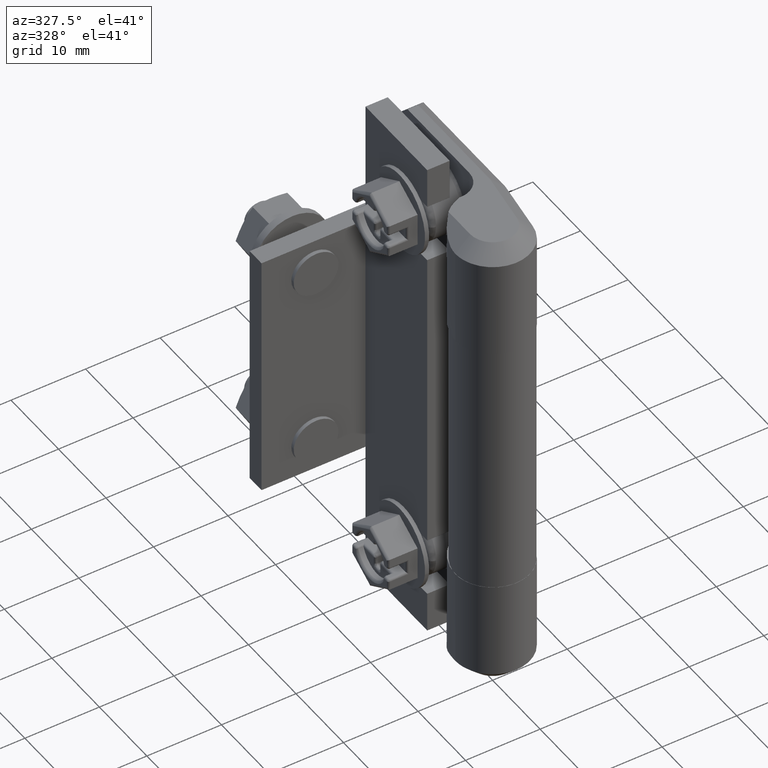
[diagram: clean part render]
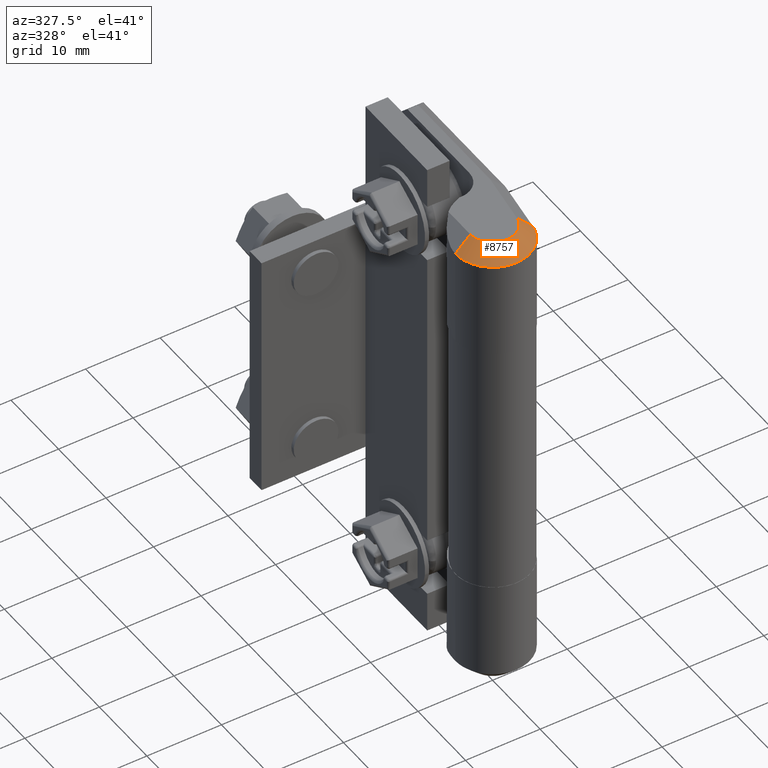
[diagram: same view with one face highlighted and labeled with its STEP entity id]
A machine part, auxiliary view. The second image highlights one B-rep face of the part: STEP entity #8757.
In plain terms, the highlighted face is a freeform B-spline surface patch.
Its self-contained STEP definition (entity closure, byte-faithful):
#8674=CARTESIAN_POINT('',(2.970291070592990,-0.421156005393746,65.000001179985603));
#8675=VERTEX_POINT('',#8674);
#8676=CARTESIAN_POINT('',(4.950484960898110,-0.701926653428345,63.000001179985603));
#8677=VERTEX_POINT('',#8676);
#8678=CARTESIAN_POINT('',(2.970291070592990,-0.421156005393746,65.000001179985603));
#8679=CARTESIAN_POINT('',(4.950484960898110,-0.701926653428345,63.000001179985603));
#8680=QUASI_UNIFORM_CURVE('',1,(#8678,#8679),.UNSPECIFIED.,.F.,.U.);
#8681=EDGE_CURVE('',#8675,#8677,#8680,.T.);
#8697=CARTESIAN_POINT('',(-2.948892597769952,0.080832221252265,65.050001179985600));
#8698=CARTESIAN_POINT('',(-5.049353639204311,0.138408048788805,62.948751179985592));
#8699=CARTESIAN_POINT('',(-3.028326200366114,-2.817036463798385,65.050001179985600));
#8700=CARTESIAN_POINT('',(-5.185366849942253,-4.823577952960521,62.948751179985571));
#8701=CARTESIAN_POINT('',(-0.132285182269626,-2.947032750365507,65.050001179985600));
#8702=CARTESIAN_POINT('',(-0.226510340529551,-5.046169044666312,62.948751179985592));
#8703=CARTESIAN_POINT('',(2.763755835826862,-3.077029036932629,65.050001179985600));
#8704=CARTESIAN_POINT('',(4.732346168883151,-5.268760136372105,62.948751179985571));
#8705=CARTESIAN_POINT('',(2.944275208236753,-0.183697847938993,65.050001179985600));
#8706=CARTESIAN_POINT('',(5.041447338153972,-0.314543635026316,62.948751179985592));
#8714=(BOUNDED_SURFACE()B_SPLINE_SURFACE(1,2,((#8697,#8699,#8701,#8703,#8705),(#8698,#8700,#8702,#8704,#8706)),.UNSPECIFIED.,.F.,.F.,.U.)B_SPLINE_SURFACE_WITH_KNOTS((2,2),(3,2,3),(0.0,2.971616247936483),(0.0,8.266084131481327,16.532168262962649),.UNSPECIFIED.)GEOMETRIC_REPRESENTATION_ITEM()RATIONAL_B_SPLINE_SURFACE(((1.0,0.713250449154182,1.0,0.713250449154182,1.0),(1.0,0.713250449154182,1.0,0.713250449154182,1.0)))REPRESENTATION_ITEM('')SURFACE());
#8715=CARTESIAN_POINT('',(-5.000000237487280,0.0,63.000001179985603));
#8716=VERTEX_POINT('',#8715);
#8717=CARTESIAN_POINT('',(-3.000000237487230,0.0,65.000001179985603));
#8718=VERTEX_POINT('',#8717);
#8719=CARTESIAN_POINT('',(-5.000000237487280,0.0,63.000001179985603));
#8720=CARTESIAN_POINT('',(-3.000000237487230,0.0,65.000001179985603));
#8721=QUASI_UNIFORM_CURVE('',1,(#8719,#8720),.UNSPECIFIED.,.F.,.U.);
#8722=EDGE_CURVE('',#8716,#8718,#8721,.T.);
#8723=ORIENTED_EDGE('',*,*,#8722,.F.);
#8724=CARTESIAN_POINT('',(4.950484960898247,-0.701926653428362,63.000001179985603));
#8725=CARTESIAN_POINT('',(4.296329299186692,-5.315496674701240,63.000001179985595));
#8726=CARTESIAN_POINT('',(-0.351835469150294,-4.987606056769184,63.000001179985603));
#8727=CARTESIAN_POINT('',(-5.000000237487280,-4.659715438837128,63.000001179985595));
#8728=CARTESIAN_POINT('',(-5.000000237487280,0.0,63.000001179985603));
#8736=(BOUNDED_CURVE()B_SPLINE_CURVE(2,(#8724,#8725,#8726,#8727,#8728),.UNSPECIFIED.,.F.,.U.)B_SPLINE_CURVE_WITH_KNOTS((3,2,3),(0.0,0.500000000000000,1.0),.UNSPECIFIED.)CURVE()GEOMETRIC_REPRESENTATION_ITEM()RATIONAL_B_SPLINE_CURVE((1.0,0.731562400102616,1.0,0.731562400102616,1.0))REPRESENTATION_ITEM(''));
#8737=EDGE_CURVE('',#8677,#8716,#8736,.T.);
#8738=ORIENTED_EDGE('',*,*,#8737,.F.);
#8739=ORIENTED_EDGE('',*,*,#8681,.F.);
#8740=CARTESIAN_POINT('',(-3.000000237487265,0.0,65.000001179985603));
#8741=CARTESIAN_POINT('',(-3.000000237487264,-2.795829351831713,65.000001179985603));
#8742=CARTESIAN_POINT('',(-0.211101288175115,-2.992563728820901,65.000001179985603));
#8743=CARTESIAN_POINT('',(2.577797661137038,-3.189298105810088,65.000001179985603));
#8744=CARTESIAN_POINT('',(2.970291070592987,-0.421156005393745,65.000001179985603));
#8752=(BOUNDED_CURVE()B_SPLINE_CURVE(2,(#8740,#8741,#8742,#8743,#8744),.UNSPECIFIED.,.F.,.U.)B_SPLINE_CURVE_WITH_KNOTS((3,2,3),(0.0,0.500000000000000,1.0),.UNSPECIFIED.)CURVE()GEOMETRIC_REPRESENTATION_ITEM()RATIONAL_B_SPLINE_CURVE((1.0,0.731562400102665,1.0,0.731562400102665,1.0))REPRESENTATION_ITEM(''));
#8753=EDGE_CURVE('',#8718,#8675,#8752,.T.);
#8754=ORIENTED_EDGE('',*,*,#8753,.F.);
#8755=EDGE_LOOP('',(#8723,#8738,#8739,#8754));
#8756=FACE_OUTER_BOUND('',#8755,.T.);
#8757=ADVANCED_FACE('',(#8756),#8714,.T.);